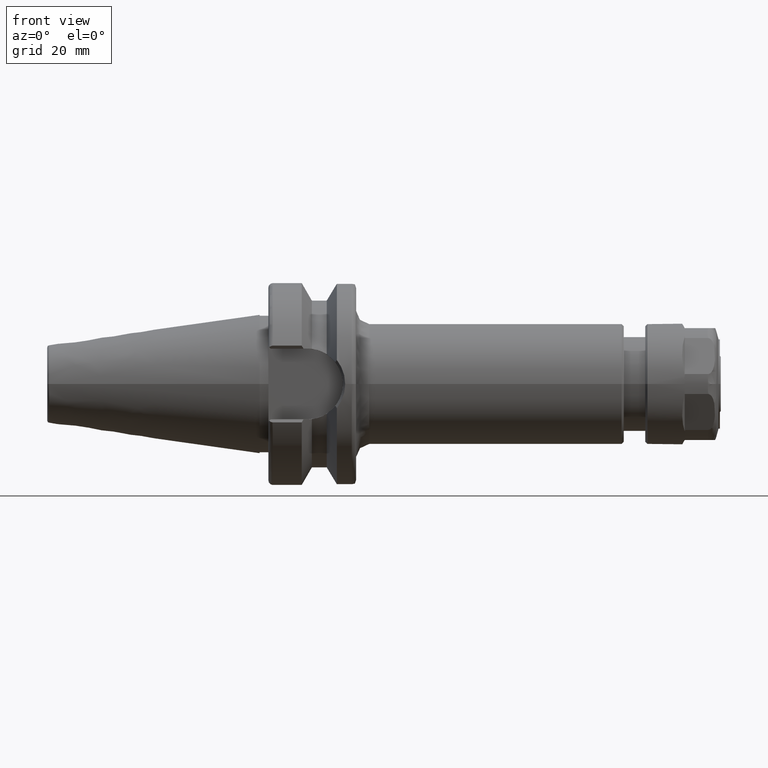
[diagram: clean part render]
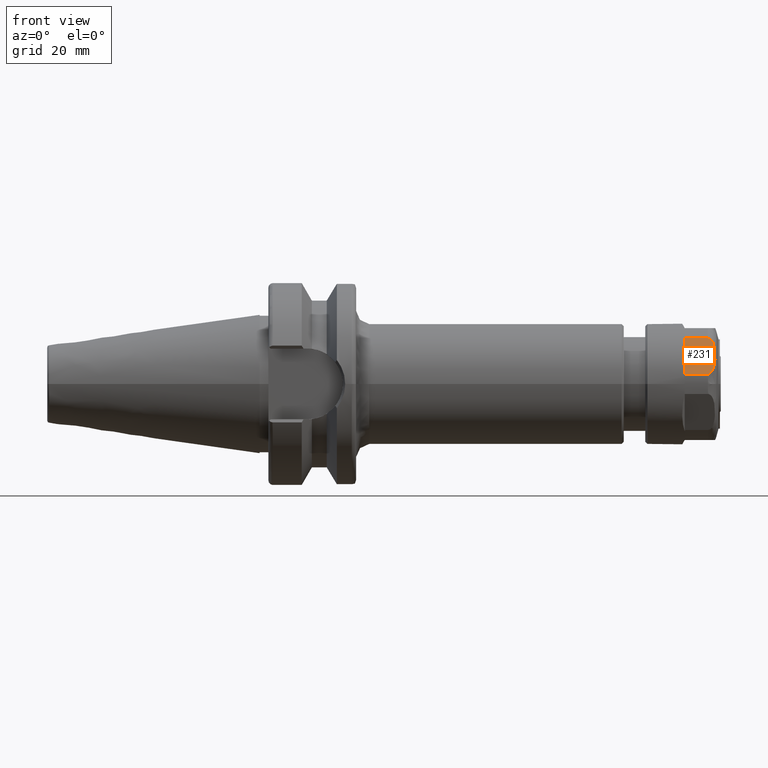
[diagram: same view with one face highlighted and labeled with its STEP entity id]
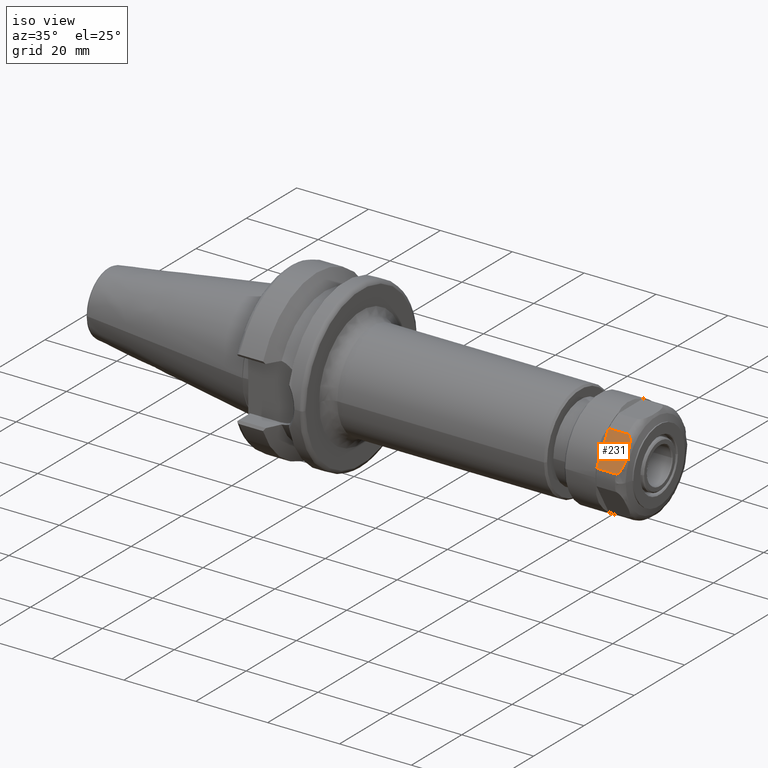
[diagram: same view with one face highlighted and labeled with its STEP entity id]
A machine part, front view. The second image highlights one B-rep face of the part: STEP entity #231.
A second angle (iso view) of the same face is appended — the face is thin or edge-on in the first view.
In plain terms, the highlighted planar face has unit normal (0, 0.866, -0.5).
Its self-contained STEP definition (entity closure, byte-faithful):
#231=ADVANCED_FACE('',(#835),#834,.F.);
#834=PLANE('',#2634);
#835=FACE_OUTER_BOUND('',#2635,.T.);
#2631=CARTESIAN_POINT('',(1.04494522683E+02,-1.38813837233E+01,1.45673811189E+00));
#2632=DIRECTION('',(2.57293005457E-15,8.66025403784E-01,-5.00000000000E-01));
#2633=DIRECTION('',(-1.00000000000E+00,2.22822278942E-15,-1.28646502728E-15));
#2634=AXIS2_PLACEMENT_3D('',#2631,#2632,#2633);
#2635=EDGE_LOOP('',(#4184,#4185,#4186,#4187));
#4184=ORIENTED_EDGE('',*,*,#4952,.T.);
#4185=ORIENTED_EDGE('',*,*,#4985,.T.);
#4186=ORIENTED_EDGE('',*,*,#4986,.T.);
#4187=ORIENTED_EDGE('',*,*,#4987,.F.);
#4952=EDGE_CURVE('',#5693,#5845,#5846,.T.);
#4985=EDGE_CURVE('',#5845,#6061,#6062,.T.);
#4986=EDGE_CURVE('',#6061,#5727,#6068,.T.);
#4987=EDGE_CURVE('',#5693,#5727,#6074,.T.);
#5693=VERTEX_POINT('',#8413);
#5727=VERTEX_POINT('',#8435);
#5845=VERTEX_POINT('',#8511);
#5846=LINE('',#8512,#8513);
#6061=VERTEX_POINT('',#8773);
#6062=(BOUNDED_CURVE() B_SPLINE_CURVE(3,(#8774,#8775,#8776,#8777,#8778,#8779,#8780,#8781,#8782,#8783,#8784,#8785,#8786,#8787,#8788,#8789,#8790,#8791,#8792,#8793,#8794,#8795,#8796,#8797,#8798,#8799,#8800,#8801,#8802,#8803),.UNSPECIFIED.,.F.,.F.) B_SPLINE_CURVE_WITH_KNOTS((4,2,2,2,2,2,2,2,2,2,2,2,2,2,4),(1.96708019444E-07,3.36741213000E-04,6.73285717981E-04,1.34637472794E-03,2.01946373791E-03,2.69255274787E-03,4.03873076779E-03,5.38490878771E-03,6.73108680764E-03,8.07726482756E-03,8.75035383752E-03,9.42344284749E-03,1.00965318574E-02,1.04330763624E-02,1.07696208674E-02),.UNSPECIFIED.) CURVE() GEOMETRIC_REPRESENTATION_ITEM() RATIONAL_B_SPLINE_CURVE((1.00000000000E+00,1.00000000000E+00,1.00000000000E+00,1.00000000000E+00,1.00000000000E+00,1.00000000000E+00,1.00000000000E+00,1.00000000000E+00,1.00000000000E+00,1.00000000000E+00,1.00000000000E+00,1.00000000000E+00,1.00000000000E+00,1.00000000000E+00,1.00000000000E+00,1.00000000000E+00,1.00000000000E+00,1.00000000000E+00,1.00000000000E+00,1.00000000000E+00,1.00000000000E+00,1.00000000000E+00,1.00000000000E+00,1.00000000000E+00,1.00000000000E+00,1.00000000000E+00,1.00000000000E+00,1.00000000000E+00,1.00000000000E+00,1.00000000000E+00)) REPRESENTATION_ITEM('') );
#6068=LINE('',#8804,#8805);
#6074=LINE('',#8807,#8808);
#8413=CARTESIAN_POINT('',(9.69000000000E+01,-1.34081237525E+01,2.27644842658E+00));
#8435=CARTESIAN_POINT('',(9.69000000000E+01,-8.67552404405E+00,1.04735515734E+01));
#8511=CARTESIAN_POINT('',(1.02167716229E+02,-1.34081237525E+01,2.27644842658E+00));
#8512=CARTESIAN_POINT('',(9.69000000000E+01,-1.34081237525E+01,2.27644842658E+00));
#8513=VECTOR('',#8514,5.26771622940E+00);
#8514=DIRECTION('',(1.00000000000E+00,0.00000000000E+00,0.00000000000E+00));
#8773=CARTESIAN_POINT('',(1.02167716229E+02,-8.67552404405E+00,1.04735515734E+01));
#8774=CARTESIAN_POINT('',(1.02167716229E+02,-1.34081237525E+01,2.27644842658E+00));
#8775=CARTESIAN_POINT('',(1.02281772121E+02,-1.34081237525E+01,2.27644842658E+00));
#8776=CARTESIAN_POINT('',(1.02392774200E+02,-1.33937772310E+01,2.30129733062E+00));
#8777=CARTESIAN_POINT('',(1.02595987285E+02,-1.33447271953E+01,2.38625448458E+00));
#8778=CARTESIAN_POINT('',(1.02688086331E+02,-1.33103362865E+01,2.44582128591E+00));
#8779=CARTESIAN_POINT('',(1.02931299359E+02,-1.31941969455E+01,2.64698052541E+00));
#8780=CARTESIAN_POINT('',(1.03056425363E+02,-1.30981819980E+01,2.81328329264E+00));
#8781=CARTESIAN_POINT('',(1.03260705756E+02,-1.28996859974E+01,3.15708845089E+00));
#8782=CARTESIAN_POINT('',(1.03341824161E+02,-1.27943037757E+01,3.33961581293E+00));
#8783=CARTESIAN_POINT('',(1.03476454319E+02,-1.25811187231E+01,3.70886315547E+00));
#8784=CARTESIAN_POINT('',(1.03529843650E+02,-1.24733833756E+01,3.89546625119E+00));
#8785=CARTESIAN_POINT('',(1.03663500863E+02,-1.21480017168E+01,4.45904381612E+00));
#8786=CARTESIAN_POINT('',(1.03717816789E+02,-1.19282256492E+01,4.83970713137E+00));
#8787=CARTESIAN_POINT('',(1.03788460334E+02,-1.14855559909E+01,5.60643347059E+00));
#8788=CARTESIAN_POINT('',(1.03804111530E+02,-1.12624948388E+01,5.99278671915E+00));
#8789=CARTESIAN_POINT('',(1.03803933840E+02,-1.08175306442E+01,6.76348731179E+00));
#8790=CARTESIAN_POINT('',(1.03788171253E+02,-1.05947810561E+01,7.14930091578E+00));
#8791=CARTESIAN_POINT('',(1.03716866024E+02,-1.01509900966E+01,7.91796940548E+00));
#8792=CARTESIAN_POINT('',(1.03661682866E+02,-9.92926062194E+00,8.30201612121E+00));
#8793=CARTESIAN_POINT('',(1.03526421534E+02,-9.60296124808E+00,8.86718321521E+00));
#8794=CARTESIAN_POINT('',(1.03472498893E+02,-9.49532694860E+00,9.05361129054E+00));
#8795=CARTESIAN_POINT('',(1.03337525021E+02,-9.28353452611E+00,9.42044652696E+00));
#8796=CARTESIAN_POINT('',(1.03256338908E+02,-9.17884511665E+00,9.60177390316E+00));
#8797=CARTESIAN_POINT('',(1.03050730138E+02,-8.98084922346E+00,9.94471284986E+00));
#8798=CARTESIAN_POINT('',(1.02927466708E+02,-8.88691512278E+00,1.01074114848E+01));
#8799=CARTESIAN_POINT('',(1.02683150424E+02,-8.77132235316E+00,1.03076240348E+01));
#8800=CARTESIAN_POINT('',(1.02592564423E+02,-8.73783627208E+00,1.03656236285E+01));
#8801=CARTESIAN_POINT('',(1.02389572166E+02,-8.68936439441E+00,1.04495793834E+01));
#8802=CARTESIAN_POINT('',(1.02280825235E+02,-8.67552404405E+00,1.04735515734E+01));
#8803=CARTESIAN_POINT('',(1.02167716229E+02,-8.67552404405E+00,1.04735515734E+01));
#8804=CARTESIAN_POINT('',(1.02167716229E+02,-8.67552404405E+00,1.04735515734E+01));
#8805=VECTOR('',#8806,5.26771622940E+00);
#8806=DIRECTION('',(-1.00000000000E+00,0.00000000000E+00,0.00000000000E+00));
#8807=CARTESIAN_POINT('',(9.69000000000E+01,-1.34081237525E+01,2.27644842658E+00));
#8808=VECTOR('',#8809,9.46519941681E+00);
#8809=DIRECTION('',(0.00000000000E+00,5.00000000000E-01,8.66025403784E-01));